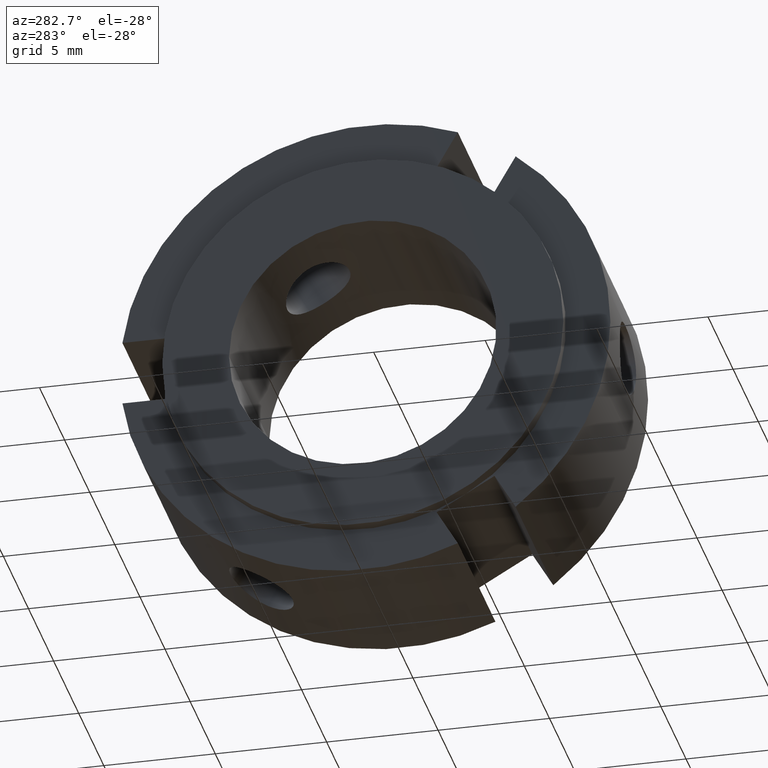
[diagram: clean part render]
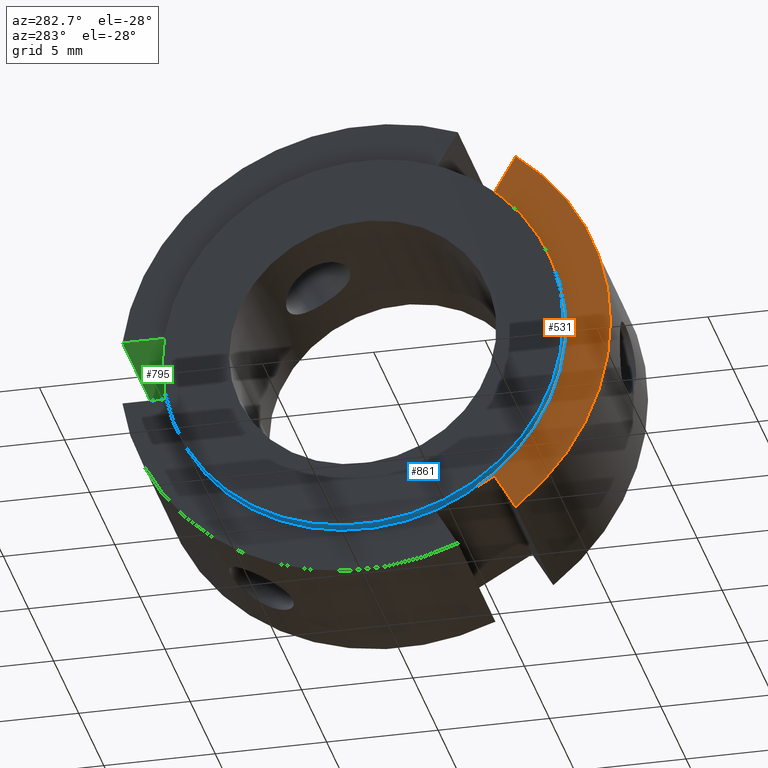
[diagram: same view with three faces highlighted in distinct colors, each labeled with its STEP entity id]
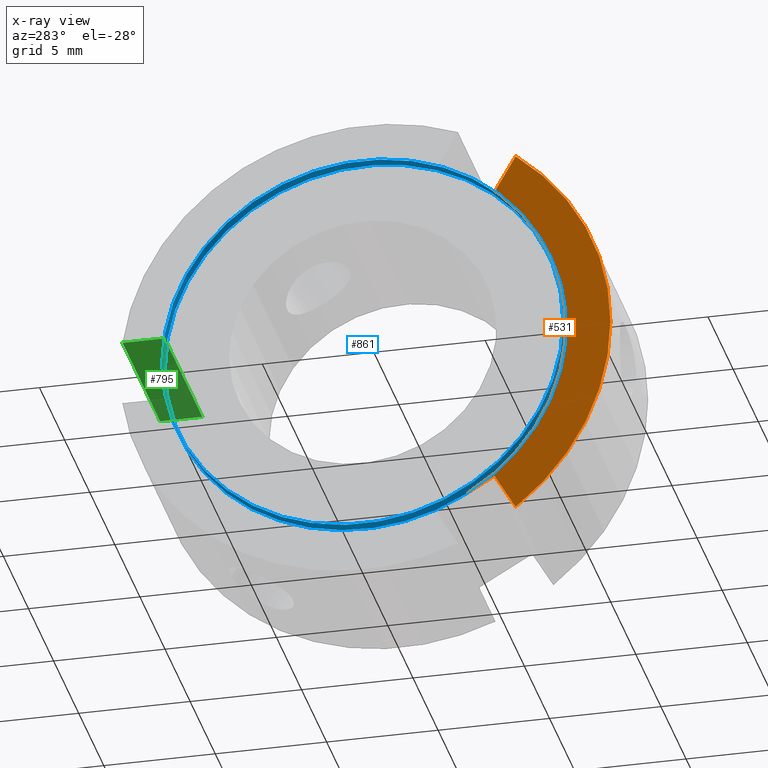
[diagram: x-ray of the same camera — body ghosted, the three highlighted faces saturated]
A machine part, auxiliary view with three faces highlighted in distinct colors.
The next image is the same camera in x-ray (body ghosted, the three faces saturated) — at least one of them is partly hidden behind the body in this view.
Their STEP definitions:

[orange] entity #531 — the highlighted planar face has unit normal (-1, 0, 0).
#73=CARTESIAN_POINT('',(0.499999999999998,-5.799038105676662,-7.044228634059944));
#74=VERTEX_POINT('',#73);
#75=CARTESIAN_POINT('',(0.499999999999998,-6.747661785102503,-8.687293044088433));
#76=VERTEX_POINT('',#75);
#77=CARTESIAN_POINT('',(0.499999999999998,-5.799038105676662,-7.044228634059944));
#78=DIRECTION('',(0.0,-0.500000000000001,-0.866025403784438));
#79=VECTOR('',#78,1.897247358851684);
#80=LINE('',#77,#79);
#81=EDGE_CURVE('',#74,#76,#80,.T.);
#153=CARTESIAN_POINT('',(0.499999999999998,-4.500000000000004,-7.794228634059946));
#154=VERTEX_POINT('',#153);
#169=CARTESIAN_POINT('',(0.499999999999998,-4.500000000000007,-7.794228634059948));
#170=DIRECTION('',(0.0,-0.866025403784438,0.500000000000000));
#171=VECTOR('',#170,1.499999999999999);
#172=LINE('',#169,#171);
#173=EDGE_CURVE('',#154,#74,#172,.T.);
#311=CARTESIAN_POINT('',(0.499999999999998,-6.747661785102497,8.687293044088436));
#312=VERTEX_POINT('',#311);
#313=CARTESIAN_POINT('',(0.499999999999998,-5.799038105676656,7.044228634059949));
#314=VERTEX_POINT('',#313);
#315=CARTESIAN_POINT('',(0.499999999999998,-6.747661785102499,8.687293044088438));
#316=DIRECTION('',(0.0,0.500000000000000,-0.866025403784439));
#317=VECTOR('',#316,1.897247358851682);
#318=LINE('',#315,#317);
#319=EDGE_CURVE('',#312,#314,#318,.T.);
#351=CARTESIAN_POINT('',(0.499999999999998,-4.499999999999998,7.794228634059948));
#352=VERTEX_POINT('',#351);
#353=CARTESIAN_POINT('',(0.499999999999999,-5.799038105676658,7.044228634059950));
#354=DIRECTION('',(0.0,0.866025403784439,0.500000000000000));
#355=VECTOR('',#354,1.500000000000000);
#356=LINE('',#353,#355);
#357=EDGE_CURVE('',#314,#352,#356,.T.);
#506=CARTESIAN_POINT('',(0.499999999999998,9.999999999999998,0.0));
#507=DIRECTION('',(-1.0,0.0,0.0));
#508=DIRECTION('',(0.0,0.0,1.0));
#509=AXIS2_PLACEMENT_3D('',#506,#507,#508);
#510=PLANE('',#509);
#511=ORIENTED_EDGE('',*,*,#173,.T.);
#512=ORIENTED_EDGE('',*,*,#81,.T.);
#513=CARTESIAN_POINT('',(0.499999999999998,0.0,0.0));
#514=DIRECTION('',(1.0,0.0,0.0));
#515=DIRECTION('',(0.0,1.0,0.0));
#516=AXIS2_PLACEMENT_3D('',#513,#514,#515);
#517=CIRCLE('',#516,10.999999999999996);
#518=EDGE_CURVE('',#312,#76,#517,.T.);
#519=ORIENTED_EDGE('',*,*,#518,.F.);
#520=ORIENTED_EDGE('',*,*,#319,.T.);
#521=ORIENTED_EDGE('',*,*,#357,.T.);
#522=CARTESIAN_POINT('',(0.499999999999998,0.0,0.0));
#523=DIRECTION('',(1.0,0.0,0.0));
#524=DIRECTION('',(0.0,1.0,0.0));
#525=AXIS2_PLACEMENT_3D('',#522,#523,#524);
#526=CIRCLE('',#525,8.999999999999998);
#527=EDGE_CURVE('',#352,#154,#526,.T.);
#528=ORIENTED_EDGE('',*,*,#527,.T.);
#529=EDGE_LOOP('',(#511,#512,#519,#520,#521,#528));
#530=FACE_OUTER_BOUND('',#529,.T.);
#531=ADVANCED_FACE('',(#530),#510,.T.);

[blue] entity #861 — the highlighted cylindrical surface (bore or boss wall) has radius 9 mm, axis along (1, 0, 0).
#153=CARTESIAN_POINT('',(0.499999999999998,-4.500000000000004,-7.794228634059946));
#154=VERTEX_POINT('',#153);
#351=CARTESIAN_POINT('',(0.499999999999998,-4.499999999999998,7.794228634059948));
#352=VERTEX_POINT('',#351);
#488=CARTESIAN_POINT('',(0.499999999999998,8.999999999999998,0.0));
#489=VERTEX_POINT('',#488);
#496=CARTESIAN_POINT('',(0.499999999999998,0.0,0.0));
#497=DIRECTION('',(1.0,0.0,0.0));
#498=DIRECTION('',(0.0,1.0,0.0));
#499=AXIS2_PLACEMENT_3D('',#496,#497,#498);
#500=CIRCLE('',#499,8.999999999999998);
#501=EDGE_CURVE('',#489,#352,#500,.T.);
#522=CARTESIAN_POINT('',(0.499999999999998,0.0,0.0));
#523=DIRECTION('',(1.0,0.0,0.0));
#524=DIRECTION('',(0.0,1.0,0.0));
#525=AXIS2_PLACEMENT_3D('',#522,#523,#524);
#526=CIRCLE('',#525,8.999999999999998);
#527=EDGE_CURVE('',#352,#154,#526,.T.);
#819=CARTESIAN_POINT('',(-2.220446E-015,8.999999999999998,0.0));
#820=VERTEX_POINT('',#819);
#821=CARTESIAN_POINT('',(-2.220446E-015,0.0,0.0));
#822=DIRECTION('',(1.0,0.0,0.0));
#823=DIRECTION('',(0.0,1.0,0.0));
#824=AXIS2_PLACEMENT_3D('',#821,#822,#823);
#825=CIRCLE('',#824,8.999999999999998);
#826=EDGE_CURVE('',#820,#820,#825,.T.);
#842=CARTESIAN_POINT('',(0.249999999999998,0.0,0.0));
#843=DIRECTION('',(1.0,0.0,0.0));
#844=DIRECTION('',(0.0,1.0,0.0));
#845=AXIS2_PLACEMENT_3D('',#842,#843,#844);
#846=CYLINDRICAL_SURFACE('',#845,8.999999999999998);
#847=ORIENTED_EDGE('',*,*,#501,.F.);
#848=CARTESIAN_POINT('',(0.499999999999998,0.0,0.0));
#849=DIRECTION('',(1.0,0.0,0.0));
#850=DIRECTION('',(0.0,1.0,0.0));
#851=AXIS2_PLACEMENT_3D('',#848,#849,#850);
#852=CIRCLE('',#851,8.999999999999998);
#853=EDGE_CURVE('',#154,#489,#852,.T.);
#854=ORIENTED_EDGE('',*,*,#853,.F.);
#855=ORIENTED_EDGE('',*,*,#527,.F.);
#856=EDGE_LOOP('',(#847,#854,#855));
#857=FACE_OUTER_BOUND('',#856,.T.);
#858=ORIENTED_EDGE('',*,*,#826,.T.);
#859=EDGE_LOOP('',(#858));
#860=FACE_BOUND('',#859,.T.);
#861=ADVANCED_FACE('',(#857,#860),#846,.T.);

[green] entity #795 — the highlighted planar face has unit normal (0, 0, 1).
#471=CARTESIAN_POINT('',(0.499999999999998,10.897247358851681,1.500000000000000));
#472=VERTEX_POINT('',#471);
#480=CARTESIAN_POINT('',(0.499999999999998,9.0,1.500000000000000));
#481=VERTEX_POINT('',#480);
#482=CARTESIAN_POINT('',(0.499999999999998,10.897247358851681,1.500000000000000));
#483=DIRECTION('',(0.0,-1.0,0.0));
#484=VECTOR('',#483,1.897247358851681);
#485=LINE('',#482,#484);
#486=EDGE_CURVE('',#472,#481,#485,.T.);
#557=CARTESIAN_POINT('',(7.999999999999996,9.0,1.500000000000000));
#558=VERTEX_POINT('',#557);
#565=CARTESIAN_POINT('',(7.999999999999996,10.897247358851681,1.500000000000000));
#566=VERTEX_POINT('',#565);
#567=CARTESIAN_POINT('',(7.999999999999996,8.999999999999998,1.500000000000000));
#568=DIRECTION('',(0.0,1.0,0.0));
#569=VECTOR('',#568,1.897247358851681);
#570=LINE('',#567,#569);
#571=EDGE_CURVE('',#558,#566,#570,.T.);
#611=CARTESIAN_POINT('',(7.999999999999996,10.897247358851681,1.500000000000000));
#612=DIRECTION('',(-1.0,0.0,0.0));
#613=VECTOR('',#612,7.499999999999998);
#614=LINE('',#611,#613);
#615=EDGE_CURVE('',#566,#472,#614,.T.);
#779=CARTESIAN_POINT('',(7.999999999999996,10.999999999999998,1.500000000000000));
#780=DIRECTION('',(0.0,0.0,1.0));
#781=DIRECTION('',(1.0,0.0,0.0));
#782=AXIS2_PLACEMENT_3D('',#779,#780,#781);
#783=PLANE('',#782);
#784=ORIENTED_EDGE('',*,*,#486,.F.);
#785=ORIENTED_EDGE('',*,*,#615,.F.);
#786=ORIENTED_EDGE('',*,*,#571,.F.);
#787=CARTESIAN_POINT('',(7.999999999999996,9.0,1.500000000000000));
#788=DIRECTION('',(-1.0,0.0,0.0));
#789=VECTOR('',#788,7.499999999999998);
#790=LINE('',#787,#789);
#791=EDGE_CURVE('',#558,#481,#790,.T.);
#792=ORIENTED_EDGE('',*,*,#791,.T.);
#793=EDGE_LOOP('',(#784,#785,#786,#792));
#794=FACE_OUTER_BOUND('',#793,.T.);
#795=ADVANCED_FACE('',(#794),#783,.F.);